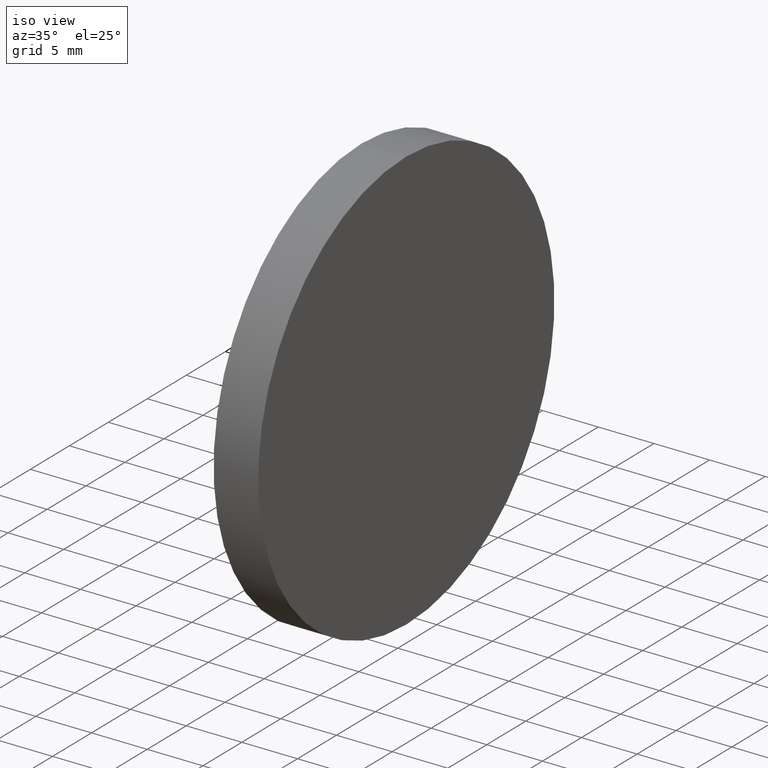
[diagram: clean part render]
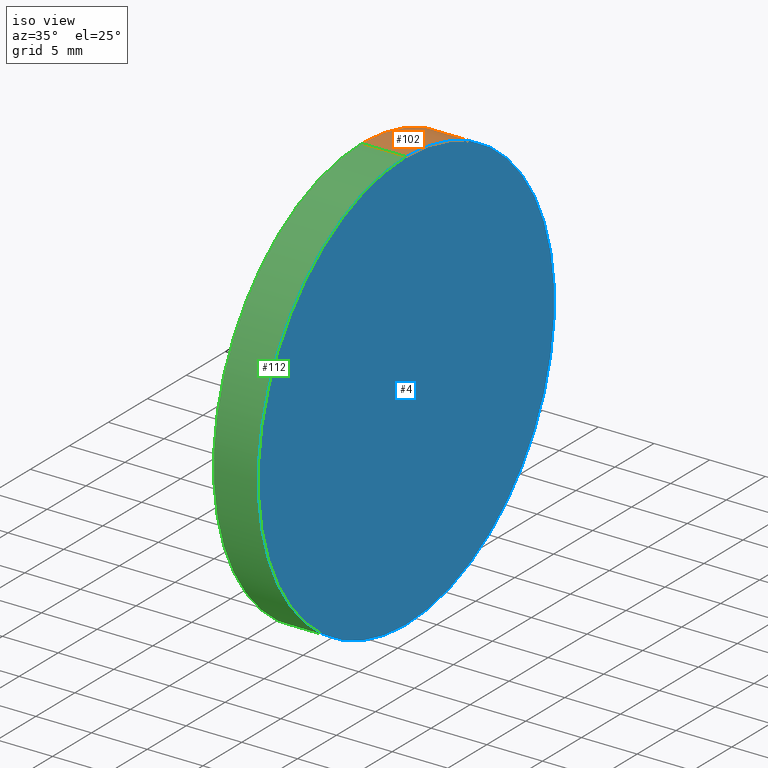
[diagram: same view with three faces highlighted in distinct colors, each labeled with its STEP entity id]
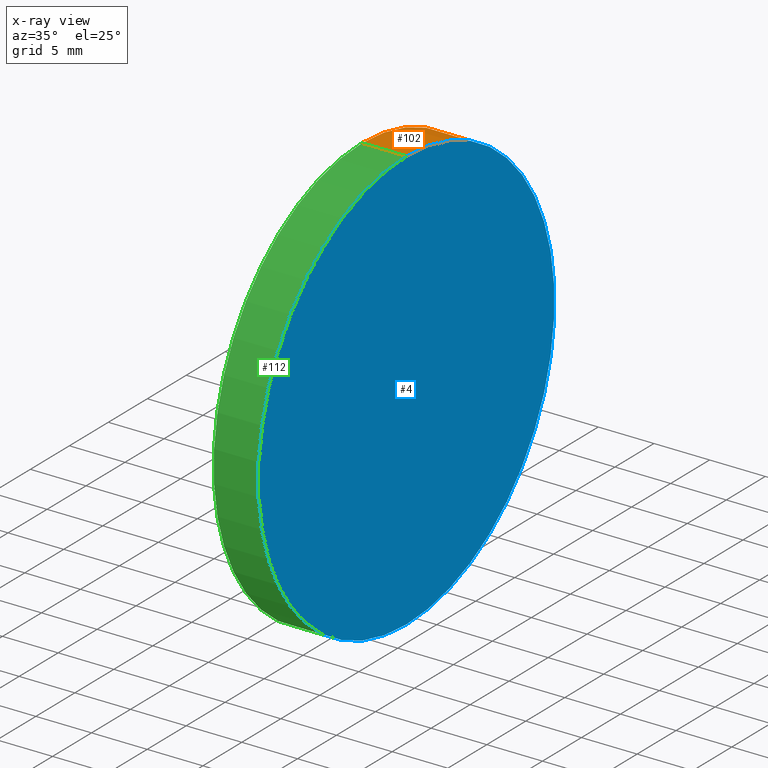
[diagram: x-ray of the same camera — body ghosted, the three highlighted faces saturated]
A machine part, iso view with three faces highlighted in distinct colors.
The next image is the same camera in x-ray (body ghosted, the three faces saturated) — at least one of them is partly hidden behind the body in this view.
Their STEP definitions:

[orange] entity #102 — the highlighted cylindrical surface (partial cylindrical patch) has radius 19 mm, axis along (-1, -0, -0).
#6 = EDGE_CURVE ( 'NONE', #127, #26, #70, .T. ) ;
#10 = VECTOR ( 'NONE', #97, 1000.000000000000000 ) ;
#13 = DIRECTION ( 'NONE',  ( 0.0000000000000000000, 0.0000000000000000000, 1.000000000000000000 ) ) ;
#17 = EDGE_CURVE ( 'NONE', #127, #77, #79, .T. ) ;
#21 = DIRECTION ( 'NONE',  ( -1.000000000000000000, -0.0000000000000000000, -0.0000000000000000000 ) ) ;
#22 = ORIENTED_EDGE ( 'NONE', *, *, #80, .T. ) ;
#26 = VERTEX_POINT ( 'NONE', #103 ) ;
#32 = EDGE_CURVE ( 'NONE', #26, #48, #134, .T. ) ;
#37 = DIRECTION ( 'NONE',  ( -1.000000000000000000, -0.0000000000000000000, -0.0000000000000000000 ) ) ;
#41 = ORIENTED_EDGE ( 'NONE', *, *, #17, .T. ) ;
#48 = VERTEX_POINT ( 'NONE', #86 ) ;
#61 = LINE ( 'NONE', #71, #10 ) ;
#63 = CARTESIAN_POINT ( 'NONE',  ( 264.1617025640067600, 77.29317934901541800, 0.0000000000000000000 ) ) ;
#66 = DIRECTION ( 'NONE',  ( -1.000000000000000000, -0.0000000000000000000, -0.0000000000000000000 ) ) ;
#68 = CARTESIAN_POINT ( 'NONE',  ( 254.0008019926160300, 77.29317934901541800, 0.0000000000000000000 ) ) ;
#70 = LINE ( 'NONE', #84, #116 ) ;
#71 = CARTESIAN_POINT ( 'NONE',  ( 254.0008019926160300, 77.29317934901541800, -19.00000000000000400 ) ) ;
#72 = DIRECTION ( 'NONE',  ( -1.000000000000000000, -0.0000000000000000000, -0.0000000000000000000 ) ) ;
#74 = CARTESIAN_POINT ( 'NONE',  ( 264.1617025640067600, 77.29317934901541800, 19.00000000000000400 ) ) ;
#77 = VERTEX_POINT ( 'NONE', #115 ) ;
#79 = CIRCLE ( 'NONE', #100, 19.00000000000000400 ) ;
#80 = EDGE_CURVE ( 'NONE', #77, #48, #61, .T. ) ;
#82 = ORIENTED_EDGE ( 'NONE', *, *, #32, .F. ) ;
#84 = CARTESIAN_POINT ( 'NONE',  ( 254.0008019926160300, 77.29317934901541800, 19.00000000000000400 ) ) ;
#86 = CARTESIAN_POINT ( 'NONE',  ( 260.1617025640067600, 77.29317934901541800, -19.00000000000000400 ) ) ;
#91 = EDGE_LOOP ( 'NONE', ( #41, #22, #82, #131 ) ) ;
#95 = DIRECTION ( 'NONE',  ( 0.0000000000000000000, 0.0000000000000000000, 1.000000000000000000 ) ) ;
#97 = DIRECTION ( 'NONE',  ( -1.000000000000000000, -0.0000000000000000000, -0.0000000000000000000 ) ) ;
#100 = AXIS2_PLACEMENT_3D ( 'NONE', #63, #72, #95 ) ;
#101 = FACE_OUTER_BOUND ( 'NONE', #91, .T. ) ;
#102 = ADVANCED_FACE ( 'NONE', ( #101 ), #123, .T. ) ;
#103 = CARTESIAN_POINT ( 'NONE',  ( 260.1617025640067600, 77.29317934901541800, 19.00000000000000400 ) ) ;
#104 = CARTESIAN_POINT ( 'NONE',  ( 260.1617025640067600, 77.29317934901541800, 0.0000000000000000000 ) ) ;
#106 = DIRECTION ( 'NONE',  ( 0.0000000000000000000, 0.0000000000000000000, 1.000000000000000000 ) ) ;
#115 = CARTESIAN_POINT ( 'NONE',  ( 264.1617025640067600, 77.29317934901541800, -19.00000000000000400 ) ) ;
#116 = VECTOR ( 'NONE', #21, 1000.000000000000000 ) ;
#123 = CYLINDRICAL_SURFACE ( 'NONE', #138, 19.00000000000000400 ) ;
#127 = VERTEX_POINT ( 'NONE', #74 ) ;
#131 = ORIENTED_EDGE ( 'NONE', *, *, #6, .F. ) ;
#134 = CIRCLE ( 'NONE', #135, 19.00000000000000400 ) ;
#135 = AXIS2_PLACEMENT_3D ( 'NONE', #104, #37, #13 ) ;
#138 = AXIS2_PLACEMENT_3D ( 'NONE', #68, #66, #106 ) ;

[blue] entity #4 — the highlighted planar face has unit normal (-1, 0, -0).
#4 = ADVANCED_FACE ( 'NONE', ( #54 ), #8, .F. ) ;
#5 = CARTESIAN_POINT ( 'NONE',  ( 264.1617025640067600, 96.29317934901541800, 0.0000000000000000000 ) ) ;
#8 = PLANE ( 'NONE',  #107 ) ;
#12 = DIRECTION ( 'NONE',  ( 0.0000000000000000000, 0.0000000000000000000, 1.000000000000000000 ) ) ;
#17 = EDGE_CURVE ( 'NONE', #127, #77, #79, .T. ) ;
#28 = ORIENTED_EDGE ( 'NONE', *, *, #29, .F. ) ;
#29 = EDGE_CURVE ( 'NONE', #77, #127, #45, .T. ) ;
#31 = CARTESIAN_POINT ( 'NONE',  ( 264.1617025640067600, 77.29317934901541800, 0.0000000000000000000 ) ) ;
#34 = AXIS2_PLACEMENT_3D ( 'NONE', #31, #114, #12 ) ;
#44 = DIRECTION ( 'NONE',  ( -0.0000000000000000000, 0.0000000000000000000, 1.000000000000000000 ) ) ;
#45 = CIRCLE ( 'NONE', #34, 19.00000000000000400 ) ;
#53 = EDGE_LOOP ( 'NONE', ( #96, #28 ) ) ;
#54 = FACE_OUTER_BOUND ( 'NONE', #53, .T. ) ;
#63 = CARTESIAN_POINT ( 'NONE',  ( 264.1617025640067600, 77.29317934901541800, 0.0000000000000000000 ) ) ;
#72 = DIRECTION ( 'NONE',  ( -1.000000000000000000, -0.0000000000000000000, -0.0000000000000000000 ) ) ;
#74 = CARTESIAN_POINT ( 'NONE',  ( 264.1617025640067600, 77.29317934901541800, 19.00000000000000400 ) ) ;
#77 = VERTEX_POINT ( 'NONE', #115 ) ;
#79 = CIRCLE ( 'NONE', #100, 19.00000000000000400 ) ;
#83 = DIRECTION ( 'NONE',  ( -1.000000000000000000, 0.0000000000000000000, -0.0000000000000000000 ) ) ;
#95 = DIRECTION ( 'NONE',  ( 0.0000000000000000000, 0.0000000000000000000, 1.000000000000000000 ) ) ;
#96 = ORIENTED_EDGE ( 'NONE', *, *, #17, .F. ) ;
#100 = AXIS2_PLACEMENT_3D ( 'NONE', #63, #72, #95 ) ;
#107 = AXIS2_PLACEMENT_3D ( 'NONE', #5, #83, #44 ) ;
#114 = DIRECTION ( 'NONE',  ( -1.000000000000000000, -0.0000000000000000000, -0.0000000000000000000 ) ) ;
#115 = CARTESIAN_POINT ( 'NONE',  ( 264.1617025640067600, 77.29317934901541800, -19.00000000000000400 ) ) ;
#127 = VERTEX_POINT ( 'NONE', #74 ) ;

[green] entity #112 — the highlighted cylindrical surface (partial cylindrical patch) has radius 19 mm, axis along (-1, -0, -0).
#2 = EDGE_CURVE ( 'NONE', #48, #26, #30, .T. ) ;
#6 = EDGE_CURVE ( 'NONE', #127, #26, #70, .T. ) ;
#9 = AXIS2_PLACEMENT_3D ( 'NONE', #78, #24, #132 ) ;
#10 = VECTOR ( 'NONE', #97, 1000.000000000000000 ) ;
#12 = DIRECTION ( 'NONE',  ( 0.0000000000000000000, 0.0000000000000000000, 1.000000000000000000 ) ) ;
#21 = DIRECTION ( 'NONE',  ( -1.000000000000000000, -0.0000000000000000000, -0.0000000000000000000 ) ) ;
#24 = DIRECTION ( 'NONE',  ( -1.000000000000000000, -0.0000000000000000000, -0.0000000000000000000 ) ) ;
#26 = VERTEX_POINT ( 'NONE', #103 ) ;
#29 = EDGE_CURVE ( 'NONE', #77, #127, #45, .T. ) ;
#30 = CIRCLE ( 'NONE', #92, 19.00000000000000400 ) ;
#31 = CARTESIAN_POINT ( 'NONE',  ( 264.1617025640067600, 77.29317934901541800, 0.0000000000000000000 ) ) ;
#34 = AXIS2_PLACEMENT_3D ( 'NONE', #31, #114, #12 ) ;
#45 = CIRCLE ( 'NONE', #34, 19.00000000000000400 ) ;
#48 = VERTEX_POINT ( 'NONE', #86 ) ;
#56 = DIRECTION ( 'NONE',  ( 0.0000000000000000000, 0.0000000000000000000, 1.000000000000000000 ) ) ;
#61 = LINE ( 'NONE', #71, #10 ) ;
#69 = CYLINDRICAL_SURFACE ( 'NONE', #9, 19.00000000000000400 ) ;
#70 = LINE ( 'NONE', #84, #116 ) ;
#71 = CARTESIAN_POINT ( 'NONE',  ( 254.0008019926160300, 77.29317934901541800, -19.00000000000000400 ) ) ;
#73 = ORIENTED_EDGE ( 'NONE', *, *, #2, .F. ) ;
#74 = CARTESIAN_POINT ( 'NONE',  ( 264.1617025640067600, 77.29317934901541800, 19.00000000000000400 ) ) ;
#77 = VERTEX_POINT ( 'NONE', #115 ) ;
#78 = CARTESIAN_POINT ( 'NONE',  ( 254.0008019926160300, 77.29317934901541800, 0.0000000000000000000 ) ) ;
#80 = EDGE_CURVE ( 'NONE', #77, #48, #61, .T. ) ;
#84 = CARTESIAN_POINT ( 'NONE',  ( 254.0008019926160300, 77.29317934901541800, 19.00000000000000400 ) ) ;
#86 = CARTESIAN_POINT ( 'NONE',  ( 260.1617025640067600, 77.29317934901541800, -19.00000000000000400 ) ) ;
#87 = ORIENTED_EDGE ( 'NONE', *, *, #80, .F. ) ;
#92 = AXIS2_PLACEMENT_3D ( 'NONE', #125, #126, #56 ) ;
#97 = DIRECTION ( 'NONE',  ( -1.000000000000000000, -0.0000000000000000000, -0.0000000000000000000 ) ) ;
#98 = FACE_OUTER_BOUND ( 'NONE', #120, .T. ) ;
#103 = CARTESIAN_POINT ( 'NONE',  ( 260.1617025640067600, 77.29317934901541800, 19.00000000000000400 ) ) ;
#111 = ORIENTED_EDGE ( 'NONE', *, *, #29, .T. ) ;
#112 = ADVANCED_FACE ( 'NONE', ( #98 ), #69, .T. ) ;
#114 = DIRECTION ( 'NONE',  ( -1.000000000000000000, -0.0000000000000000000, -0.0000000000000000000 ) ) ;
#115 = CARTESIAN_POINT ( 'NONE',  ( 264.1617025640067600, 77.29317934901541800, -19.00000000000000400 ) ) ;
#116 = VECTOR ( 'NONE', #21, 1000.000000000000000 ) ;
#120 = EDGE_LOOP ( 'NONE', ( #87, #111, #136, #73 ) ) ;
#125 = CARTESIAN_POINT ( 'NONE',  ( 260.1617025640067600, 77.29317934901541800, 0.0000000000000000000 ) ) ;
#126 = DIRECTION ( 'NONE',  ( -1.000000000000000000, -0.0000000000000000000, -0.0000000000000000000 ) ) ;
#127 = VERTEX_POINT ( 'NONE', #74 ) ;
#132 = DIRECTION ( 'NONE',  ( 0.0000000000000000000, 0.0000000000000000000, 1.000000000000000000 ) ) ;
#136 = ORIENTED_EDGE ( 'NONE', *, *, #6, .T. ) ;